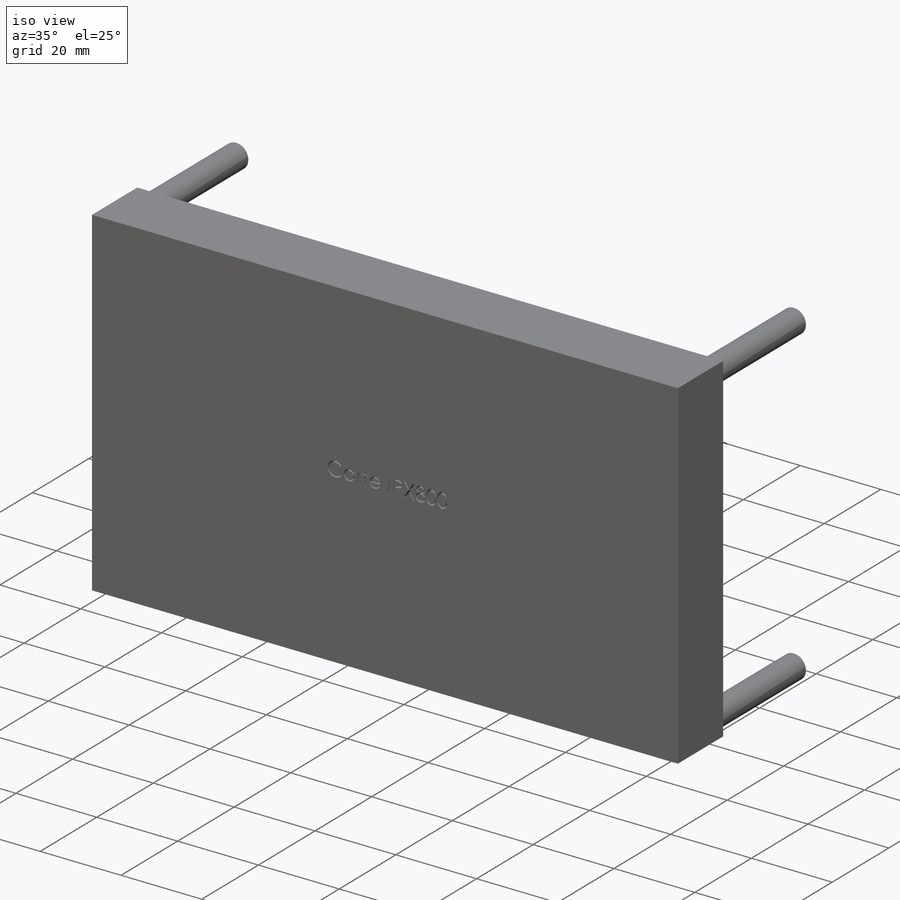
[diagram: iso view]
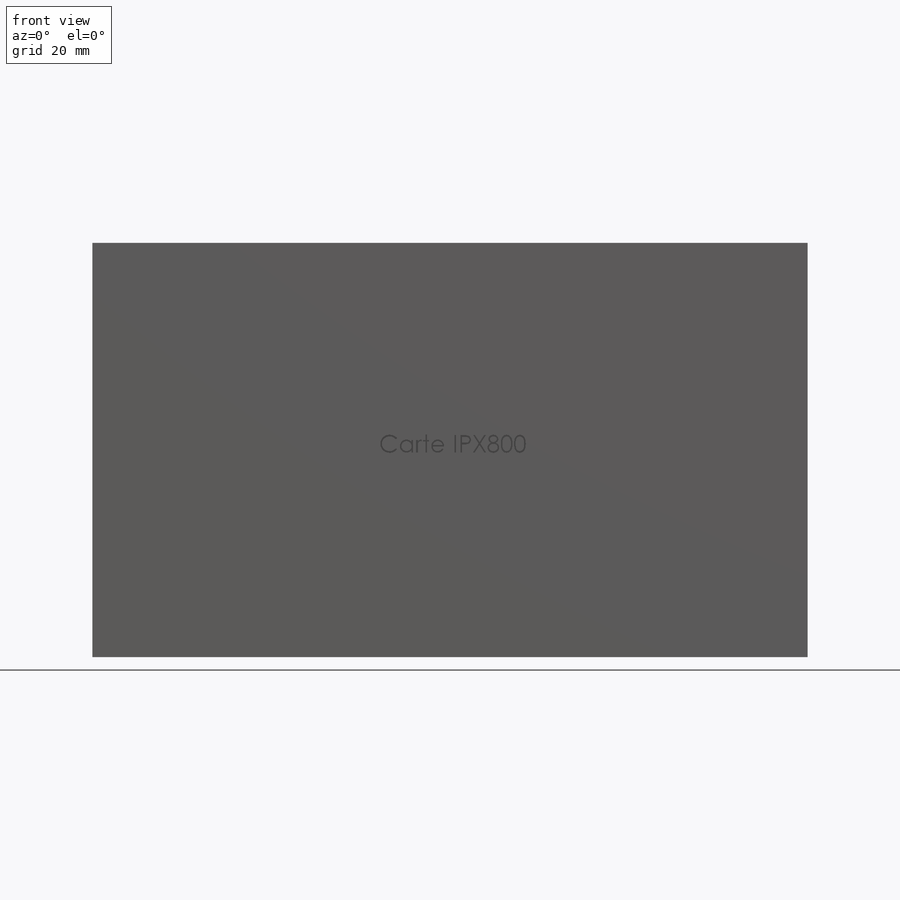
[diagram: front view]
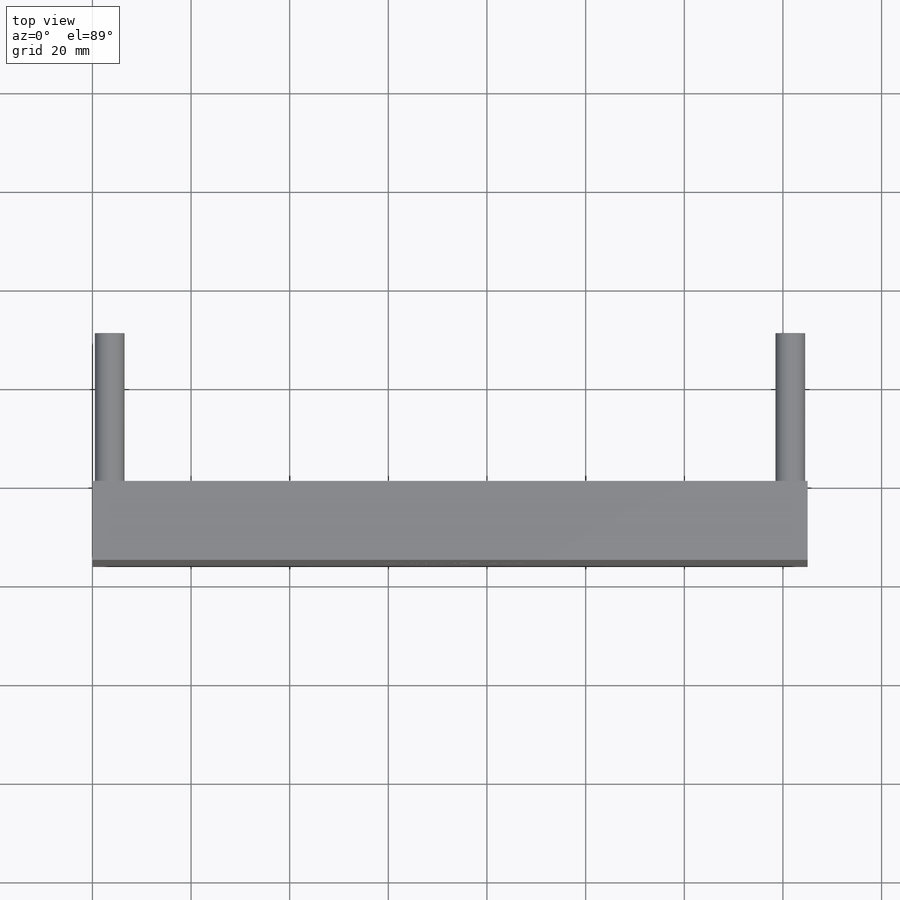
[diagram: top view]
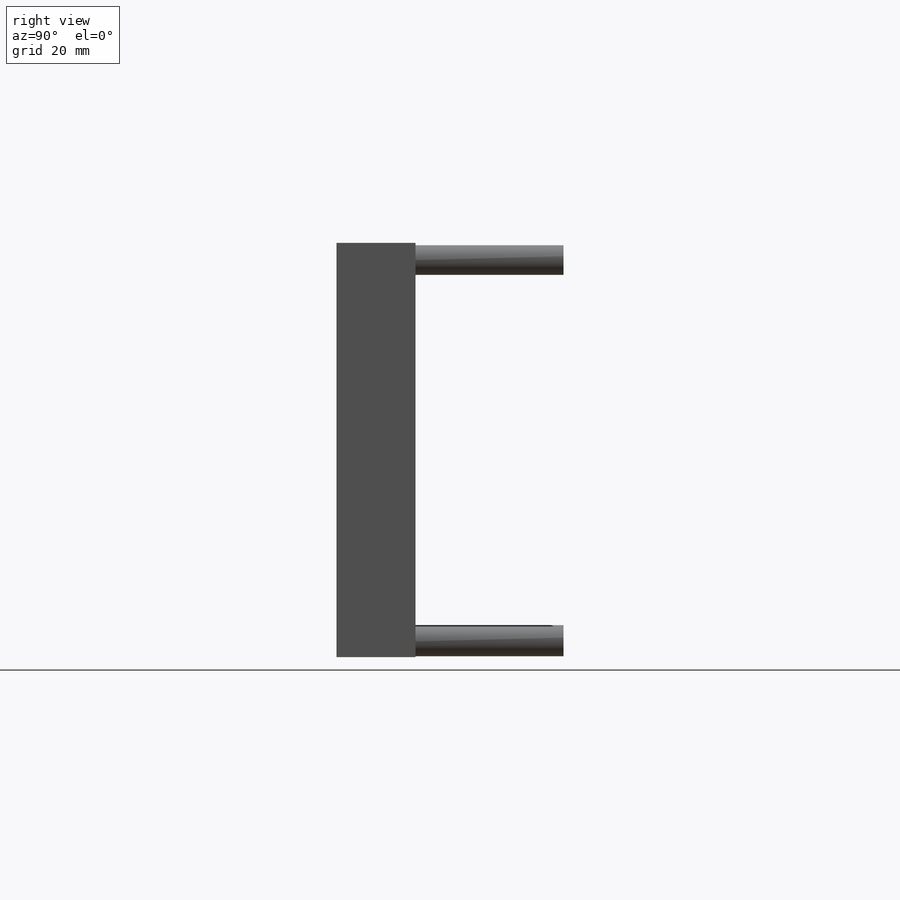
[diagram: right view]
SOLIDWORKS PART (.sldprt)
format: sldprt  version: not decoded by parser v0  size: 339,456 bytes
history: native  units: mm
features: plane x3, sketch x3, extrude x2, material x1, cut_extrude x1 (+13 scaffold rows collapsed)
feature tree (23):
  scaffold x13  (default folders/planes/origin — collapsed)
  material  "Matériau <non spécifié>"
  plane  "Plan de face"
  plane  "Plan de dessus"
  plane  "Plan de droite"
  sketch  "Esquisse1"  dims[D1=145.0mm D2=84.0mm]
  extrude  "Extrusion1"  Depth=16mm
  sketch  "Esquisse2"  dims[D1=6.0mm D4=6.0mm D5=6.0mm D6=6.0mm D2=3.5mm D3=3.5mm D7=~3.192318mm D8=3.5mm D9=3.5mm D10=3.5mm D11=3.5mm D12=3.5mm]
  extrude  "Extrusion2"  Depth=30mm
  sketch  "Esquisse4"
  cut_extrude  "Extrusion3"  Depth=2mm
decode coverage: 5 of 6 modeling features carry decoded parameters
note: ~ marks probable driven/reference dimensions
note: suppression state not decoded; provenance and decode notes live in map.json
